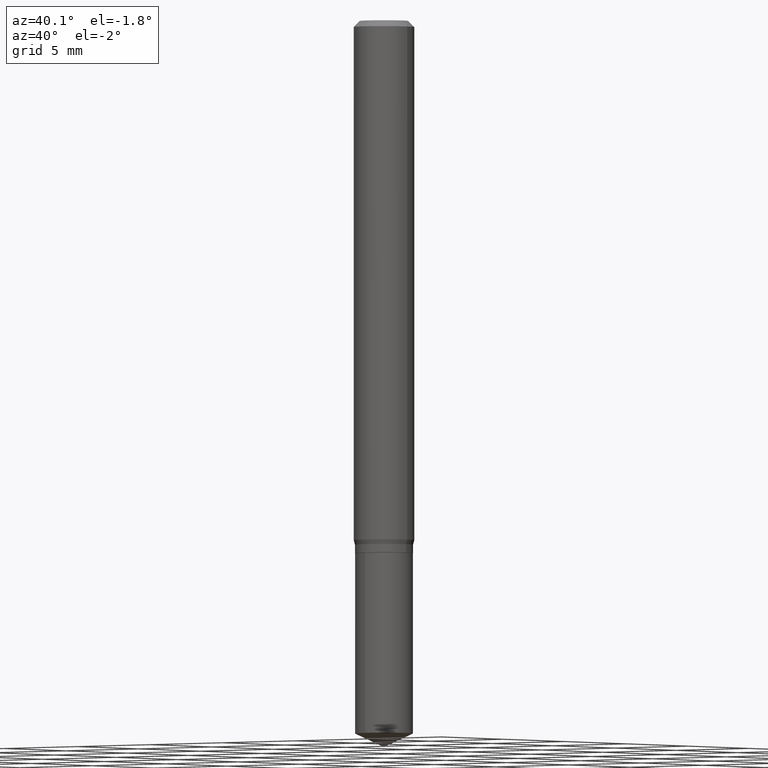
[diagram: clean part render]
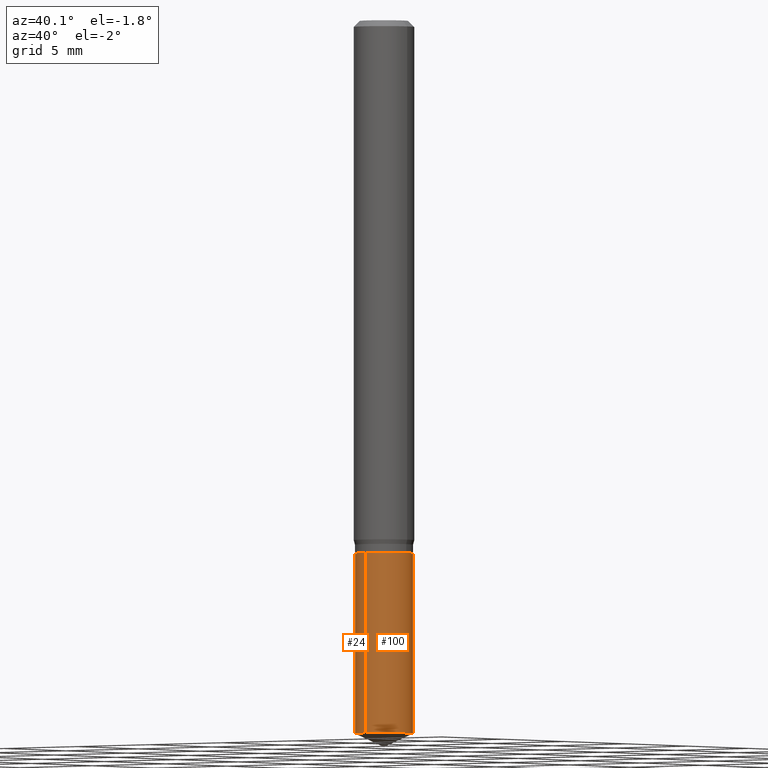
[diagram: same view with one multi-face feature highlighted, each face labeled with its STEP entity id]
A machine part, auxiliary view. The highlighted faces form ONE feature: a constant-radius fillet chain: 2 tangent blend faces with common blend radius 1.524 mm. The faces share edges in the B-rep.
Their STEP definitions:
[1] entity #100 (Cylinder):
#21 = CIRCLE ( 'NONE', #348, 0.05999999999999999778 ) ;
#25 = CARTESIAN_POINT ( 'NONE',  ( -4.189777606611400503E-16, -0.06000000000000514644, -1.472021540510699777 ) ) ;
#40 = VECTOR ( 'NONE', #165, 39.37007874015748143 ) ;
#47 = VECTOR ( 'NONE', #411, 39.37007874015748143 ) ;
#50 = EDGE_CURVE ( 'NONE', #77, #197, #266, .T. ) ;
#77 = VERTEX_POINT ( 'NONE', #25 ) ;
#85 = DIRECTION ( 'NONE',  ( -6.982962677686265922E-15, -1.000000000000000000, 4.553079989440439092E-15 ) ) ;
#100 = ADVANCED_FACE ( 'NONE', ( #117 ), #237, .T. ) ;
#117 = FACE_OUTER_BOUND ( 'NONE', #128, .T. ) ;
#123 = ORIENTED_EDGE ( 'NONE', *, *, #484, .T. ) ;
#128 = EDGE_LOOP ( 'NONE', ( #393, #123, #163, #454 ) ) ;
#132 = CARTESIAN_POINT ( 'NONE',  ( 3.599757046796273077E-29, -5.139572560910813619E-15, -1.472021540510700000 ) ) ;
#163 = ORIENTED_EDGE ( 'NONE', *, *, #339, .F. ) ;
#165 = DIRECTION ( 'NONE',  ( -2.445399690415121810E-29, 3.491580316559632610E-15, 1.000000000000000000 ) ) ;
#182 = EDGE_CURVE ( 'NONE', #77, #240, #273, .T. ) ;
#197 = VERTEX_POINT ( 'NONE', #201 ) ;
#201 = CARTESIAN_POINT ( 'NONE',  ( 4.263256414560960875E-16, 0.05999999999999486994, -1.472021540510700444 ) ) ;
#220 = LINE ( 'NONE', #439, #47 ) ;
#237 = CYLINDRICAL_SURFACE ( 'NONE', #261, 0.05999999999999999778 ) ;
#240 = VERTEX_POINT ( 'NONE', #465 ) ;
#248 = CARTESIAN_POINT ( 'NONE',  ( -4.189777606611490729E-16, -0.06000000000000384193, -1.099999999999999645 ) ) ;
#249 = CARTESIAN_POINT ( 'NONE',  ( 2.690015686803650369E-29, -3.840629472727460101E-15, -1.100000000000000089 ) ) ;
#261 = AXIS2_PLACEMENT_3D ( 'NONE', #249, #387, #315 ) ;
#266 = CIRCLE ( 'NONE', #390, 0.05999999999999999778 ) ;
#273 = LINE ( 'NONE', #248, #40 ) ;
#275 = CARTESIAN_POINT ( 'NONE',  ( 2.690015686803650369E-29, -3.840629472727460101E-15, -1.100000000000000089 ) ) ;
#290 = DIRECTION ( 'NONE',  ( -2.445399690415121530E-29, 3.491580316559632610E-15, 1.000000000000000000 ) ) ;
#315 = DIRECTION ( 'NONE',  ( -6.982962677686265922E-15, -1.000000000000000000, 4.553079989440439092E-15 ) ) ;
#339 = EDGE_CURVE ( 'NONE', #240, #388, #21, .T. ) ;
#348 = AXIS2_PLACEMENT_3D ( 'NONE', #275, #394, #85 ) ;
#387 = DIRECTION ( 'NONE',  ( -2.445399690415121530E-29, 3.491580316559632610E-15, 1.000000000000000000 ) ) ;
#388 = VERTEX_POINT ( 'NONE', #479 ) ;
#390 = AXIS2_PLACEMENT_3D ( 'NONE', #132, #290, #433 ) ;
#393 = ORIENTED_EDGE ( 'NONE', *, *, #50, .T. ) ;
#394 = DIRECTION ( 'NONE',  ( -2.445399690415121530E-29, 3.491580316559632610E-15, 1.000000000000000000 ) ) ;
#411 = DIRECTION ( 'NONE',  ( -2.445399690415121810E-29, 3.491580316559632610E-15, 1.000000000000000000 ) ) ;
#433 = DIRECTION ( 'NONE',  ( -6.982962677686265922E-15, -1.000000000000000000, 4.553079989440439092E-15 ) ) ;
#439 = CARTESIAN_POINT ( 'NONE',  ( 4.263256414560869170E-16, 0.05999999999999616057, -1.100000000000000311 ) ) ;
#454 = ORIENTED_EDGE ( 'NONE', *, *, #182, .F. ) ;
#465 = CARTESIAN_POINT ( 'NONE',  ( -4.189777606611490729E-16, -0.06000000000000384193, -1.099999999999999645 ) ) ;
#479 = CARTESIAN_POINT ( 'NONE',  ( 4.263256414560960875E-16, 0.05999999999999616057, -1.100000000000000311 ) ) ;
#484 = EDGE_CURVE ( 'NONE', #197, #388, #220, .T. ) ;
[2] entity #24 (Cylinder):
#5 = ORIENTED_EDGE ( 'NONE', *, *, #473, .T. ) ;
#13 = CARTESIAN_POINT ( 'NONE',  ( 2.690015686803650369E-29, -3.840629472727460101E-15, -1.100000000000000089 ) ) ;
#24 = ADVANCED_FACE ( 'NONE', ( #93 ), #59, .T. ) ;
#25 = CARTESIAN_POINT ( 'NONE',  ( -4.189777606611400503E-16, -0.06000000000000514644, -1.472021540510699777 ) ) ;
#40 = VECTOR ( 'NONE', #165, 39.37007874015748143 ) ;
#47 = VECTOR ( 'NONE', #411, 39.37007874015748143 ) ;
#55 = AXIS2_PLACEMENT_3D ( 'NONE', #401, #56, #370 ) ;
#56 = DIRECTION ( 'NONE',  ( -2.445399690415121530E-29, 3.491580316559632610E-15, 1.000000000000000000 ) ) ;
#59 = CYLINDRICAL_SURFACE ( 'NONE', #55, 0.05999999999999999778 ) ;
#77 = VERTEX_POINT ( 'NONE', #25 ) ;
#93 = FACE_OUTER_BOUND ( 'NONE', #371, .T. ) ;
#96 = ORIENTED_EDGE ( 'NONE', *, *, #484, .F. ) ;
#158 = DIRECTION ( 'NONE',  ( -2.445399690415121530E-29, 3.491580316559632610E-15, 1.000000000000000000 ) ) ;
#165 = DIRECTION ( 'NONE',  ( -2.445399690415121810E-29, 3.491580316559632610E-15, 1.000000000000000000 ) ) ;
#177 = DIRECTION ( 'NONE',  ( -6.982962677686265922E-15, -1.000000000000000000, 4.553079989440439092E-15 ) ) ;
#182 = EDGE_CURVE ( 'NONE', #77, #240, #273, .T. ) ;
#197 = VERTEX_POINT ( 'NONE', #201 ) ;
#199 = CIRCLE ( 'NONE', #478, 0.05999999999999999778 ) ;
#201 = CARTESIAN_POINT ( 'NONE',  ( 4.263256414560960875E-16, 0.05999999999999486994, -1.472021540510700444 ) ) ;
#220 = LINE ( 'NONE', #439, #47 ) ;
#240 = VERTEX_POINT ( 'NONE', #465 ) ;
#248 = CARTESIAN_POINT ( 'NONE',  ( -4.189777606611490729E-16, -0.06000000000000384193, -1.099999999999999645 ) ) ;
#255 = ORIENTED_EDGE ( 'NONE', *, *, #182, .T. ) ;
#263 = CARTESIAN_POINT ( 'NONE',  ( 3.599757046796273077E-29, -5.139572560910813619E-15, -1.472021540510700000 ) ) ;
#273 = LINE ( 'NONE', #248, #40 ) ;
#294 = ORIENTED_EDGE ( 'NONE', *, *, #317, .F. ) ;
#317 = EDGE_CURVE ( 'NONE', #388, #240, #367, .T. ) ;
#367 = CIRCLE ( 'NONE', #425, 0.05999999999999999778 ) ;
#370 = DIRECTION ( 'NONE',  ( -6.982962677686265922E-15, -1.000000000000000000, 4.553079989440439092E-15 ) ) ;
#371 = EDGE_LOOP ( 'NONE', ( #96, #5, #255, #294 ) ) ;
#388 = VERTEX_POINT ( 'NONE', #479 ) ;
#401 = CARTESIAN_POINT ( 'NONE',  ( 2.690015686803650369E-29, -3.840629472727460101E-15, -1.100000000000000089 ) ) ;
#411 = DIRECTION ( 'NONE',  ( -2.445399690415121810E-29, 3.491580316559632610E-15, 1.000000000000000000 ) ) ;
#425 = AXIS2_PLACEMENT_3D ( 'NONE', #13, #158, #461 ) ;
#439 = CARTESIAN_POINT ( 'NONE',  ( 4.263256414560869170E-16, 0.05999999999999616057, -1.100000000000000311 ) ) ;
#461 = DIRECTION ( 'NONE',  ( -6.982962677686265922E-15, -1.000000000000000000, 4.553079989440439092E-15 ) ) ;
#465 = CARTESIAN_POINT ( 'NONE',  ( -4.189777606611490729E-16, -0.06000000000000384193, -1.099999999999999645 ) ) ;
#473 = EDGE_CURVE ( 'NONE', #197, #77, #199, .T. ) ;
#478 = AXIS2_PLACEMENT_3D ( 'NONE', #263, #489, #177 ) ;
#479 = CARTESIAN_POINT ( 'NONE',  ( 4.263256414560960875E-16, 0.05999999999999616057, -1.100000000000000311 ) ) ;
#484 = EDGE_CURVE ( 'NONE', #197, #388, #220, .T. ) ;
#489 = DIRECTION ( 'NONE',  ( -2.445399690415121530E-29, 3.491580316559632610E-15, 1.000000000000000000 ) ) ;